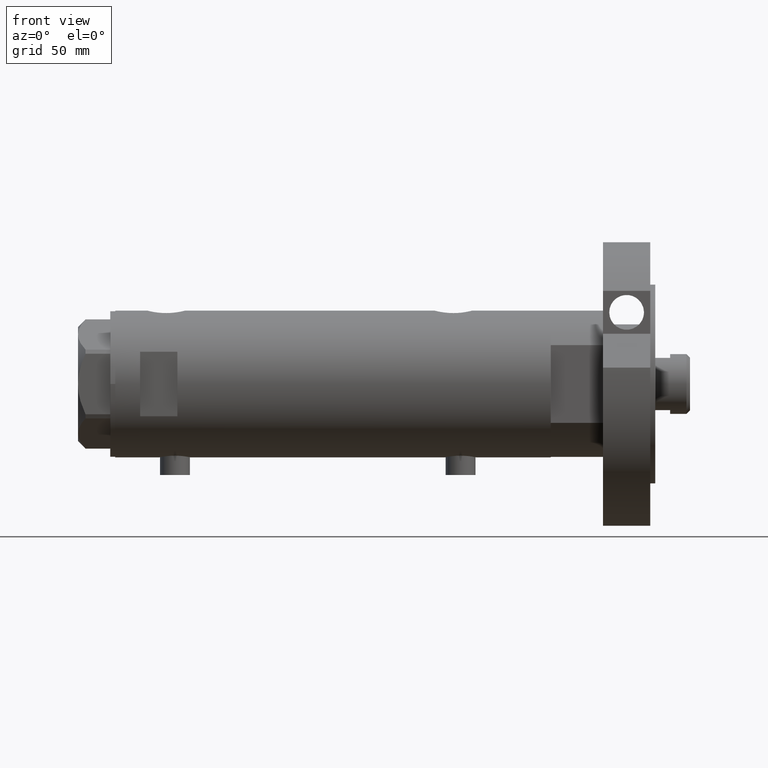
[diagram: clean part render]
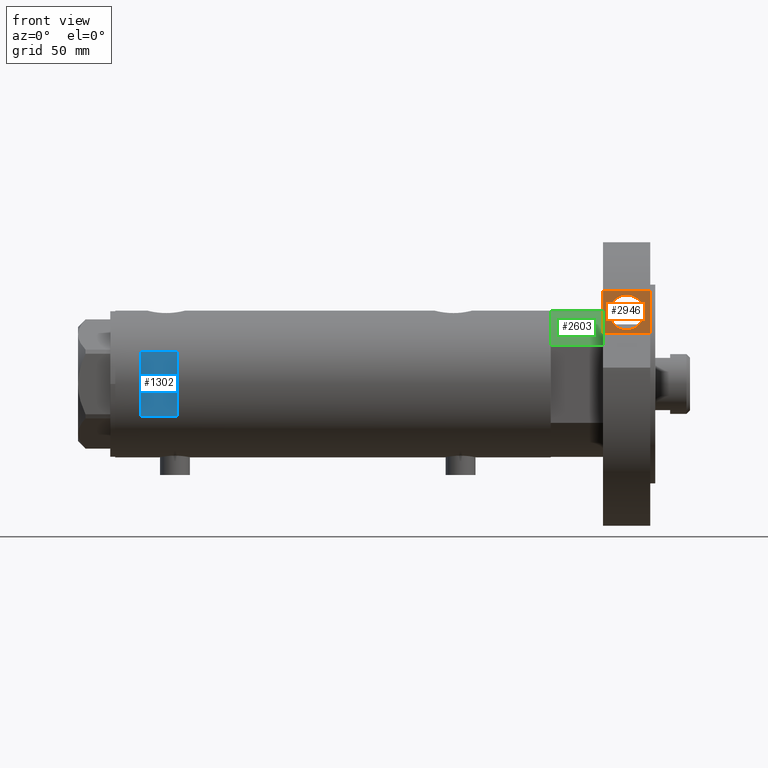
[diagram: same view with three faces highlighted in distinct colors, each labeled with its STEP entity id]
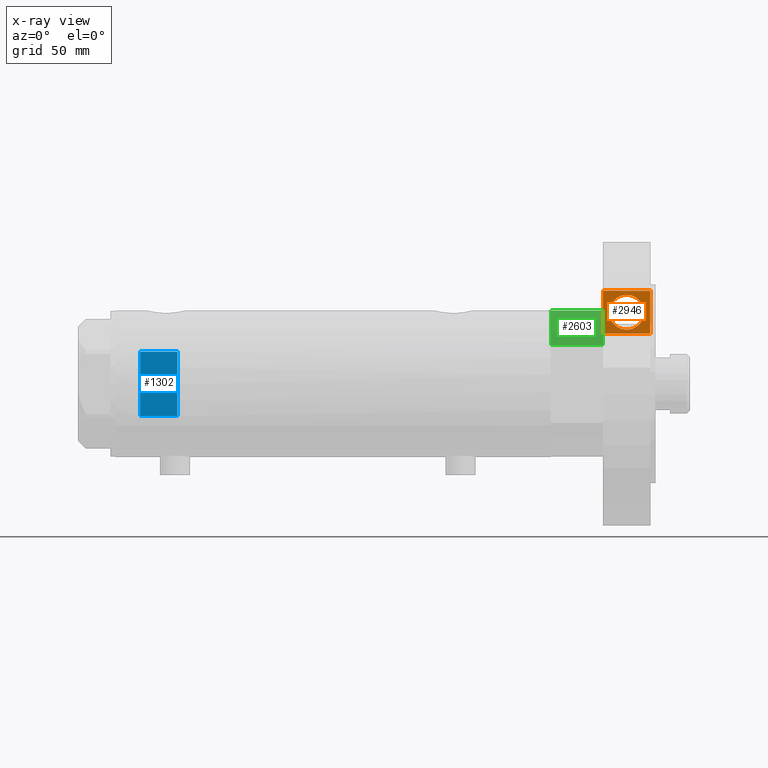
[diagram: x-ray of the same camera — body ghosted, the three highlighted faces saturated]
A machine part, front view with three faces highlighted in distinct colors.
The next image is the same camera in x-ray (body ghosted, the three faces saturated) — at least one of them is partly hidden behind the body in this view.
Their STEP definitions:

[orange] entity #2946 — the highlighted planar face has unit normal (-0, 1, 0).
#19 = VERTEX_POINT ( 'NONE', #591 ) ;
#20 = CARTESIAN_POINT ( 'NONE',  ( 28.82445616129993127, 42.98007820311755012, 9.500000000000000000 ) ) ;
#141 = CARTESIAN_POINT ( 'NONE',  ( 20.20945616129993283, 42.98007820311755012, 0.000000000000000000 ) ) ;
#227 = ORIENTED_EDGE ( 'NONE', *, *, #4370, .T. ) ;
#309 = CIRCLE ( 'NONE', #3768, 7.000000000000000000 ) ;
#332 = EDGE_CURVE ( 'NONE', #4250, #19, #1095, .T. ) ;
#591 = CARTESIAN_POINT ( 'NONE',  ( 37.43945616129992970, 42.98007820311755012, 0.000000000000000000 ) ) ;
#642 = EDGE_CURVE ( 'NONE', #4250, #2177, #4957, .T. ) ;
#685 = LINE ( 'NONE', #4929, #3183 ) ;
#767 = CARTESIAN_POINT ( 'NONE',  ( 28.82445616129993127, 42.98007820311755012, 2.499999999999999556 ) ) ;
#797 = CARTESIAN_POINT ( 'NONE',  ( 37.43945616129992970, 42.98007820311755012, 19.00000000000000000 ) ) ;
#949 = DIRECTION ( 'NONE',  ( 0.000000000000000000, -1.000000000000000000, 0.000000000000000000 ) ) ;
#1090 = EDGE_CURVE ( 'NONE', #6004, #5730, #3937, .T. ) ;
#1095 = LINE ( 'NONE', #141, #3259 ) ;
#1156 = LINE ( 'NONE', #2121, #5848 ) ;
#1203 = CARTESIAN_POINT ( 'NONE',  ( 20.20945616129993283, 42.98007820311755012, 0.000000000000000000 ) ) ;
#1298 = EDGE_LOOP ( 'NONE', ( #227, #4365, #3811, #3236 ) ) ;
#1702 = DIRECTION ( 'NONE',  ( -0.000000000000000000, -0.000000000000000000, 1.000000000000000000 ) ) ;
#2114 = CARTESIAN_POINT ( 'NONE',  ( 20.20945616129993283, 42.98007820311755012, 19.00000000000000000 ) ) ;
#2121 = CARTESIAN_POINT ( 'NONE',  ( 37.43945616129992970, 42.98007820311755012, 0.000000000000000000 ) ) ;
#2170 = AXIS2_PLACEMENT_3D ( 'NONE', #4949, #3551, #4505 ) ;
#2177 = VERTEX_POINT ( 'NONE', #2114 ) ;
#2582 = DIRECTION ( 'NONE',  ( 1.000000000000000000, 0.000000000000000000, -0.000000000000000000 ) ) ;
#2812 = FACE_BOUND ( 'NONE', #3316, .T. ) ;
#2855 = CARTESIAN_POINT ( 'NONE',  ( 20.20945616129993283, 42.98007820311755012, 0.000000000000000000 ) ) ;
#2877 = AXIS2_PLACEMENT_3D ( 'NONE', #3031, #3893, #5871 ) ;
#2946 = ADVANCED_FACE ( 'NONE', ( #2812, #4695 ), #4915, .F. ) ;
#3031 = CARTESIAN_POINT ( 'NONE',  ( 20.20945616129993283, 42.98007820311755012, 0.000000000000000000 ) ) ;
#3059 = CARTESIAN_POINT ( 'NONE',  ( 28.82445616129993127, 42.98007820311755012, 16.50000000000000000 ) ) ;
#3183 = VECTOR ( 'NONE', #2582, 1000.000000000000000 ) ;
#3236 = ORIENTED_EDGE ( 'NONE', *, *, #642, .T. ) ;
#3259 = VECTOR ( 'NONE', #4883, 1000.000000000000000 ) ;
#3316 = EDGE_LOOP ( 'NONE', ( #5486, #4842 ) ) ;
#3551 = DIRECTION ( 'NONE',  ( 0.000000000000000000, -1.000000000000000000, 0.000000000000000000 ) ) ;
#3768 = AXIS2_PLACEMENT_3D ( 'NONE', #20, #949, #4790 ) ;
#3811 = ORIENTED_EDGE ( 'NONE', *, *, #332, .F. ) ;
#3883 = EDGE_CURVE ( 'NONE', #5730, #6004, #309, .T. ) ;
#3893 = DIRECTION ( 'NONE',  ( 0.000000000000000000, -1.000000000000000000, 0.000000000000000000 ) ) ;
#3937 = CIRCLE ( 'NONE', #2170, 7.000000000000000000 ) ;
#4136 = EDGE_CURVE ( 'NONE', #19, #5117, #1156, .T. ) ;
#4250 = VERTEX_POINT ( 'NONE', #2855 ) ;
#4365 = ORIENTED_EDGE ( 'NONE', *, *, #4136, .F. ) ;
#4370 = EDGE_CURVE ( 'NONE', #2177, #5117, #685, .T. ) ;
#4505 = DIRECTION ( 'NONE',  ( 0.000000000000000000, 0.000000000000000000, -1.000000000000000000 ) ) ;
#4586 = DIRECTION ( 'NONE',  ( -0.000000000000000000, -0.000000000000000000, 1.000000000000000000 ) ) ;
#4695 = FACE_OUTER_BOUND ( 'NONE', #1298, .T. ) ;
#4790 = DIRECTION ( 'NONE',  ( 0.000000000000000000, 0.000000000000000000, -1.000000000000000000 ) ) ;
#4842 = ORIENTED_EDGE ( 'NONE', *, *, #3883, .T. ) ;
#4883 = DIRECTION ( 'NONE',  ( 1.000000000000000000, 0.000000000000000000, 0.000000000000000000 ) ) ;
#4915 = PLANE ( 'NONE',  #2877 ) ;
#4929 = CARTESIAN_POINT ( 'NONE',  ( 0.000000000000000000, 42.98007820311755012, 19.00000000000000000 ) ) ;
#4949 = CARTESIAN_POINT ( 'NONE',  ( 28.82445616129993127, 42.98007820311755012, 9.500000000000000000 ) ) ;
#4957 = LINE ( 'NONE', #1203, #5035 ) ;
#5035 = VECTOR ( 'NONE', #1702, 1000.000000000000000 ) ;
#5117 = VERTEX_POINT ( 'NONE', #797 ) ;
#5486 = ORIENTED_EDGE ( 'NONE', *, *, #1090, .T. ) ;
#5730 = VERTEX_POINT ( 'NONE', #767 ) ;
#5848 = VECTOR ( 'NONE', #4586, 1000.000000000000000 ) ;
#5871 = DIRECTION ( 'NONE',  ( 0.000000000000000000, -0.000000000000000000, -1.000000000000000000 ) ) ;
#6004 = VERTEX_POINT ( 'NONE', #3059 ) ;

[blue] entity #1302 — the highlighted planar face has unit normal (-0, 1, 0).
#54 = DIRECTION ( 'NONE',  ( 1.000000000000000000, -0.000000000000000000, -0.000000000000000000 ) ) ;
#110 = DIRECTION ( 'NONE',  ( 0.000000000000000000, 1.000000000000000000, 0.000000000000000000 ) ) ;
#361 = CARTESIAN_POINT ( 'NONE',  ( -12.96148139681573319, -26.49999999999999645, -87.59999999999999432 ) ) ;
#413 = ORIENTED_EDGE ( 'NONE', *, *, #4719, .F. ) ;
#440 = CARTESIAN_POINT ( 'NONE',  ( -29.50000000000000355, -26.50000000000000355, 62.60000000000001563 ) ) ;
#478 = CARTESIAN_POINT ( 'NONE',  ( -29.50000000000000355, -26.50000000000000355, 77.60000000000002274 ) ) ;
#675 = CARTESIAN_POINT ( 'NONE',  ( 12.96148139681573319, -26.49999999999998934, 62.59999999999998721 ) ) ;
#816 = VECTOR ( 'NONE', #1815, 1000.000000000000000 ) ;
#947 = CARTESIAN_POINT ( 'NONE',  ( 12.96148139681573319, -26.49999999999998934, 77.60000000000002274 ) ) ;
#1197 = LINE ( 'NONE', #361, #816 ) ;
#1302 = ADVANCED_FACE ( 'NONE', ( #1936 ), #3822, .F. ) ;
#1395 = VERTEX_POINT ( 'NONE', #947 ) ;
#1420 = EDGE_CURVE ( 'NONE', #3701, #1395, #2462, .T. ) ;
#1529 = DIRECTION ( 'NONE',  ( 0.000000000000000000, 0.000000000000000000, 1.000000000000000000 ) ) ;
#1815 = DIRECTION ( 'NONE',  ( -0.000000000000000000, -0.000000000000000000, -1.000000000000000000 ) ) ;
#1936 = FACE_OUTER_BOUND ( 'NONE', #3797, .T. ) ;
#1993 = VECTOR ( 'NONE', #5178, 1000.000000000000000 ) ;
#2156 = AXIS2_PLACEMENT_3D ( 'NONE', #478, #110, #2932 ) ;
#2462 = LINE ( 'NONE', #2902, #3843 ) ;
#2820 = LINE ( 'NONE', #5597, #4369 ) ;
#2902 = CARTESIAN_POINT ( 'NONE',  ( 12.96148139681573319, -26.49999999999999645, -87.59999999999999432 ) ) ;
#2932 = DIRECTION ( 'NONE',  ( 0.000000000000000000, -0.000000000000000000, 1.000000000000000000 ) ) ;
#2981 = ORIENTED_EDGE ( 'NONE', *, *, #4220, .T. ) ;
#3440 = VERTEX_POINT ( 'NONE', #4893 ) ;
#3564 = VERTEX_POINT ( 'NONE', #4824 ) ;
#3670 = ORIENTED_EDGE ( 'NONE', *, *, #1420, .T. ) ;
#3701 = VERTEX_POINT ( 'NONE', #675 ) ;
#3797 = EDGE_LOOP ( 'NONE', ( #6047, #2981, #3670, #413 ) ) ;
#3822 = PLANE ( 'NONE',  #2156 ) ;
#3843 = VECTOR ( 'NONE', #1529, 1000.000000000000000 ) ;
#4220 = EDGE_CURVE ( 'NONE', #3440, #3701, #4777, .T. ) ;
#4369 = VECTOR ( 'NONE', #54, 1000.000000000000000 ) ;
#4719 = EDGE_CURVE ( 'NONE', #3564, #1395, #2820, .T. ) ;
#4777 = LINE ( 'NONE', #440, #1993 ) ;
#4824 = CARTESIAN_POINT ( 'NONE',  ( -12.96148139681573319, -26.49999999999998934, 77.60000000000002274 ) ) ;
#4893 = CARTESIAN_POINT ( 'NONE',  ( -12.96148139681573319, -26.49999999999998934, 62.59999999999998721 ) ) ;
#5178 = DIRECTION ( 'NONE',  ( 1.000000000000000000, -0.000000000000000000, -0.000000000000000000 ) ) ;
#5179 = EDGE_CURVE ( 'NONE', #3564, #3440, #1197, .T. ) ;
#5597 = CARTESIAN_POINT ( 'NONE',  ( -29.50000000000000355, -26.50000000000000355, 77.60000000000002274 ) ) ;
#6047 = ORIENTED_EDGE ( 'NONE', *, *, #5179, .T. ) ;

[green] entity #2603 — the highlighted cylindrical surface (partial cylindrical patch) has radius 29.5 mm, axis along (-1, -0, 0).
#17 = CARTESIAN_POINT ( 'NONE',  ( 0.000000000000000000, 0.000000000000000000, 21.00000000000000000 ) ) ;
#33 = DIRECTION ( 'NONE',  ( -1.000000000000000000, 0.000000000000000000, 0.000000000000000000 ) ) ;
#126 = CARTESIAN_POINT ( 'NONE',  ( -15.66045976336582690, -25.00000000000000000, 0.000000000000000000 ) ) ;
#586 = CARTESIAN_POINT ( 'NONE',  ( 0.000000000000000000, 0.000000000000000000, 21.00000000000000000 ) ) ;
#843 = VERTEX_POINT ( 'NONE', #4604 ) ;
#974 = DIRECTION ( 'NONE',  ( 1.000000000000000000, 0.000000000000000000, 0.000000000000000000 ) ) ;
#1018 = DIRECTION ( 'NONE',  ( -0.000000000000000000, -0.000000000000000000, -1.000000000000000000 ) ) ;
#1331 = EDGE_CURVE ( 'NONE', #2233, #4272, #2860, .T. ) ;
#1333 = CARTESIAN_POINT ( 'NONE',  ( -15.66045976336583045, -24.99999999999999645, 20.99999999999999645 ) ) ;
#1870 = EDGE_CURVE ( 'NONE', #843, #5462, #2166, .T. ) ;
#1950 = CARTESIAN_POINT ( 'NONE',  ( -15.66045976336583401, -25.00000000000000000, 0.000000000000000000 ) ) ;
#1982 = LINE ( 'NONE', #1950, #4978 ) ;
#1998 = DIRECTION ( 'NONE',  ( 0.000000000000000000, 0.000000000000000000, 1.000000000000000000 ) ) ;
#2166 = CIRCLE ( 'NONE', #5330, 29.50000000000000355 ) ;
#2233 = VERTEX_POINT ( 'NONE', #5578 ) ;
#2259 = ORIENTED_EDGE ( 'NONE', *, *, #1870, .T. ) ;
#2603 = ADVANCED_FACE ( 'NONE', ( #2945 ), #4236, .T. ) ;
#2740 = DIRECTION ( 'NONE',  ( 0.000000000000000000, 0.000000000000000000, 1.000000000000000000 ) ) ;
#2860 = CIRCLE ( 'NONE', #5712, 29.50000000000000355 ) ;
#2945 = FACE_OUTER_BOUND ( 'NONE', #3856, .T. ) ;
#3043 = ORIENTED_EDGE ( 'NONE', *, *, #1331, .F. ) ;
#3369 = LINE ( 'NONE', #5257, #3671 ) ;
#3613 = EDGE_CURVE ( 'NONE', #2233, #843, #3369, .T. ) ;
#3671 = VECTOR ( 'NONE', #1018, 1000.000000000000000 ) ;
#3717 = ORIENTED_EDGE ( 'NONE', *, *, #5545, .T. ) ;
#3836 = DIRECTION ( 'NONE',  ( -0.000000000000000000, -0.000000000000000000, 1.000000000000000000 ) ) ;
#3856 = EDGE_LOOP ( 'NONE', ( #3043, #5531, #2259, #3717 ) ) ;
#4219 = DIRECTION ( 'NONE',  ( 1.000000000000000000, 0.000000000000000000, 0.000000000000000000 ) ) ;
#4236 = CYLINDRICAL_SURFACE ( 'NONE', #5238, 29.50000000000000355 ) ;
#4270 = DIRECTION ( 'NONE',  ( -0.000000000000000000, -0.000000000000000000, -1.000000000000000000 ) ) ;
#4272 = VERTEX_POINT ( 'NONE', #1333 ) ;
#4604 = CARTESIAN_POINT ( 'NONE',  ( -29.50000000000000355, 0.000000000000000000, 0.000000000000000000 ) ) ;
#4978 = VECTOR ( 'NONE', #3836, 1000.000000000000000 ) ;
#5238 = AXIS2_PLACEMENT_3D ( 'NONE', #586, #4270, #33 ) ;
#5257 = CARTESIAN_POINT ( 'NONE',  ( -29.50000000000000355, 0.000000000000000000, 21.00000000000000000 ) ) ;
#5330 = AXIS2_PLACEMENT_3D ( 'NONE', #6014, #2740, #4219 ) ;
#5462 = VERTEX_POINT ( 'NONE', #126 ) ;
#5531 = ORIENTED_EDGE ( 'NONE', *, *, #3613, .T. ) ;
#5545 = EDGE_CURVE ( 'NONE', #5462, #4272, #1982, .T. ) ;
#5578 = CARTESIAN_POINT ( 'NONE',  ( -29.50000000000000355, 0.000000000000000000, 21.00000000000000000 ) ) ;
#5712 = AXIS2_PLACEMENT_3D ( 'NONE', #17, #1998, #974 ) ;
#6014 = CARTESIAN_POINT ( 'NONE',  ( 0.000000000000000000, 0.000000000000000000, 0.000000000000000000 ) ) ;